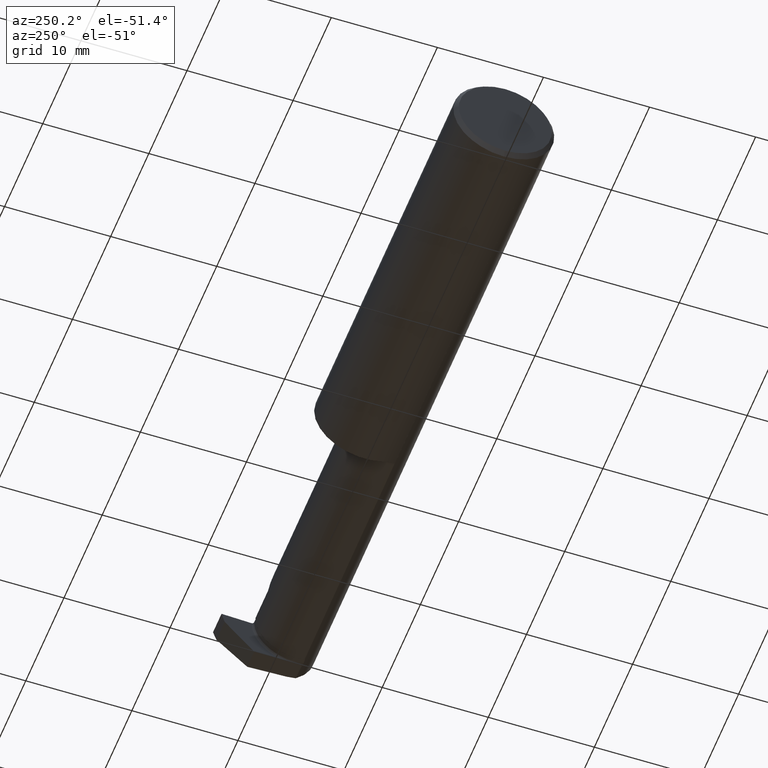
[diagram: clean part render]
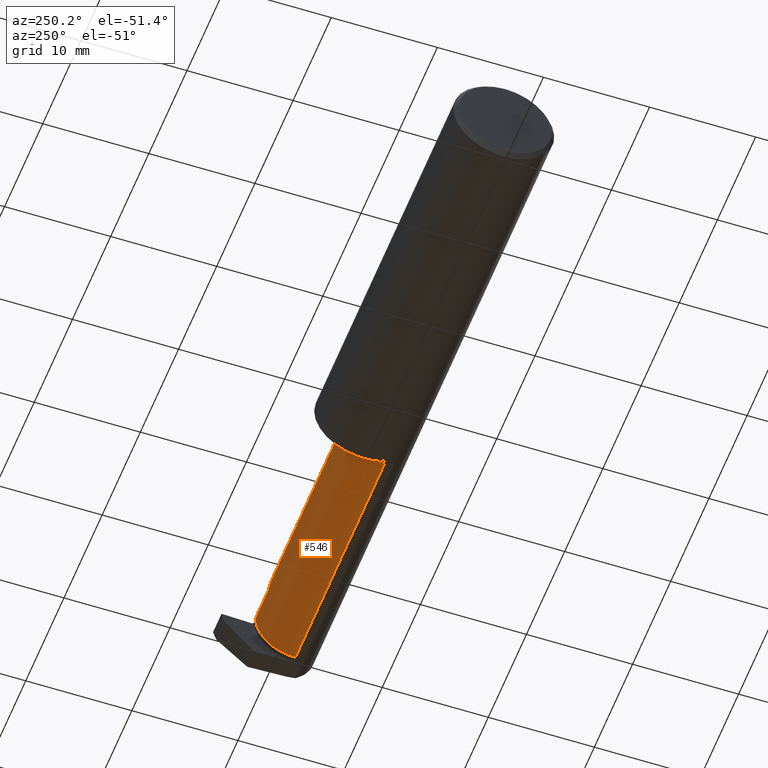
[diagram: same view with one face highlighted and labeled with its STEP entity id]
A machine part, auxiliary view. The second image highlights one B-rep face of the part: STEP entity #546.
In plain terms, the highlighted cylindrical surface (partial cylindrical patch) has radius 3.81 mm, axis along (-1, -0, -0).
Its self-contained STEP definition (entity closure, byte-faithful):
#30 = CARTESIAN_POINT ( 'NONE',  ( 2.395225471794955929, -0.01680765279787221206, -0.1347940398077654423 ) ) ;
#34 = CARTESIAN_POINT ( 'NONE',  ( 2.390763790498810160, 0.06664999999568653466, -0.01979744948649976577 ) ) ;
#95 = VERTEX_POINT ( 'NONE', #563 ) ;
#106 = ORIENTED_EDGE ( 'NONE', *, *, #234, .T. ) ;
#107 = CARTESIAN_POINT ( 'NONE',  ( 2.260000000000000231, 0.06664999999999998703, 2.939152317953647352E-17 ) ) ;
#110 = B_SPLINE_CURVE_WITH_KNOTS ( 'NONE', 3,
 ( #437, #34, #288, #533, #836, #990, #362, #431, #119, #598, #30, #446, #126, #275 ),
 .UNSPECIFIED., .F., .F.,
 ( 4, 2, 2, 2, 2, 2, 4 ),
 ( 0.000000000000000000, 0.001502816197902084178, 0.002254224296853126266, 0.003005632395804168789, 0.003757040494755211311, 0.004508448593706253400, 0.006011264791608339313 ),
 .UNSPECIFIED. ) ;
#119 = CARTESIAN_POINT ( 'NONE',  ( 2.394653255738095954, 0.008070310459961382160, -0.1193227123486250985 ) ) ;
#126 = CARTESIAN_POINT ( 'NONE',  ( 2.395856814876256013, -0.06360476889634815445, -0.1500000000000002720 ) ) ;
#135 = EDGE_CURVE ( 'NONE', #888, #95, #555, .T. ) ;
#136 = VERTEX_POINT ( 'NONE', #704 ) ;
#149 = CARTESIAN_POINT ( 'NONE',  ( 1.450000000000000178, -0.08334999999999995191, -0.1499999999999999667 ) ) ;
#153 = CARTESIAN_POINT ( 'NONE',  ( 1.474999999999999867, -0.08334999999999996578, 0.1499999999999999667 ) ) ;
#190 = DIRECTION ( 'NONE',  ( -1.000000000000000000, -0.000000000000000000, -0.000000000000000000 ) ) ;
#228 = AXIS2_PLACEMENT_3D ( 'NONE', #243, #190, #369 ) ;
#234 = EDGE_CURVE ( 'NONE', #136, #697, #799, .T. ) ;
#242 = CARTESIAN_POINT ( 'NONE',  ( 2.395836297478969534, -0.08335000000000182541, -0.1499999999999999944 ) ) ;
#243 = CARTESIAN_POINT ( 'NONE',  ( 1.474999999999999867, -0.08334999999999996578, 0.000000000000000000 ) ) ;
#275 = CARTESIAN_POINT ( 'NONE',  ( 2.395836297478969534, -0.08335000000000182541, -0.1499999999999999944 ) ) ;
#288 = CARTESIAN_POINT ( 'NONE',  ( 2.391494832230491863, 0.06268195086073437283, -0.03944630615901861814 ) ) ;
#306 = DIRECTION ( 'NONE',  ( -1.000000000000000000, -0.000000000000000000, -0.000000000000000000 ) ) ;
#327 = DIRECTION ( 'NONE',  ( 0.000000000000000000, 0.000000000000000000, 1.000000000000000000 ) ) ;
#341 = CARTESIAN_POINT ( 'NONE',  ( 1.450000000000000178, 0.06665000000000001479, 1.285879139104721472E-16 ) ) ;
#358 = CARTESIAN_POINT ( 'NONE',  ( 2.390000000000253699, 0.06664999999974562106, 1.168855585177079669E-17 ) ) ;
#362 = CARTESIAN_POINT ( 'NONE',  ( 2.393801628541803339, 0.02964346064176548445, -0.09913881906227751950 ) ) ;
#365 = DIRECTION ( 'NONE',  ( -1.000000000000000000, -0.000000000000000000, -0.000000000000000000 ) ) ;
#369 = DIRECTION ( 'NONE',  ( 0.000000000000000000, 0.000000000000000000, 1.000000000000000000 ) ) ;
#390 = VECTOR ( 'NONE', #365, 39.37007874015748143 ) ;
#431 = CARTESIAN_POINT ( 'NONE',  ( 2.394366831996006084, 0.01578481760160732258, -0.1129969713397719483 ) ) ;
#437 = CARTESIAN_POINT ( 'NONE',  ( 2.390000000000253699, 0.06664999999974562106, 1.168855585177079669E-17 ) ) ;
#446 = CARTESIAN_POINT ( 'NONE',  ( 2.395634578925883051, -0.04414754588174509692, -0.1461247280461798193 ) ) ;
#452 = ORIENTED_EDGE ( 'NONE', *, *, #1008, .F. ) ;
#533 = CARTESIAN_POINT ( 'NONE',  ( 2.392599397649165294, 0.05145660123729903224, -0.06650199770152477596 ) ) ;
#541 = ORIENTED_EDGE ( 'NONE', *, *, #135, .T. ) ;
#546 = ADVANCED_FACE ( 'NONE', ( #729 ), #562, .T. ) ;
#555 = LINE ( 'NONE', #149, #774 ) ;
#562 = CYLINDRICAL_SURFACE ( 'NONE', #725, 0.1499999999999999667 ) ;
#563 = CARTESIAN_POINT ( 'NONE',  ( 1.474999999999999867, -0.08334999999999995191, -0.1499999999999999667 ) ) ;
#581 = VERTEX_POINT ( 'NONE', #1039 ) ;
#584 = DIRECTION ( 'NONE',  ( -1.000000000000000000, -0.000000000000000000, -0.000000000000000000 ) ) ;
#593 = CARTESIAN_POINT ( 'NONE',  ( 2.172132034355964691, 0.06665000000000000091, 0.08786796564403574761 ) ) ;
#598 = CARTESIAN_POINT ( 'NONE',  ( 2.395076593510822693, -0.008191685434110907577, -0.1301799162637744256 ) ) ;
#602 = EDGE_CURVE ( 'NONE', #895, #95, #997, .T. ) ;
#619 = EDGE_LOOP ( 'NONE', ( #759, #541, #732, #452, #873, #106 ) ) ;
#660 = EDGE_CURVE ( 'NONE', #581, #136, #970, .T. ) ;
#671 = CARTESIAN_POINT ( 'NONE',  ( 2.110000000000001208, 0.004517965644035767080, 0.1499999999999999667 ) ) ;
#680 = EDGE_CURVE ( 'NONE', #697, #888, #110, .T. ) ;
#697 = VERTEX_POINT ( 'NONE', #358 ) ;
#704 = CARTESIAN_POINT ( 'NONE',  ( 2.260000000000000231, 0.06664999999999998703, 2.939152317953647352E-17 ) ) ;
#725 = AXIS2_PLACEMENT_3D ( 'NONE', #972, #584, #327 ) ;
#729 = FACE_OUTER_BOUND ( 'NONE', #619, .T. ) ;
#732 = ORIENTED_EDGE ( 'NONE', *, *, #602, .F. ) ;
#759 = ORIENTED_EDGE ( 'NONE', *, *, #680, .T. ) ;
#774 = VECTOR ( 'NONE', #306, 39.37007874015748143 ) ;
#793 = DIRECTION ( 'NONE',  ( 1.000000000000000000, 0.000000000000000000, 0.000000000000000000 ) ) ;
#799 = LINE ( 'NONE', #341, #857 ) ;
#820 = LINE ( 'NONE', #896, #390 ) ;
#836 = CARTESIAN_POINT ( 'NONE',  ( 2.392934709761937562, 0.04676339944382951891, -0.07527877754758263706 ) ) ;
#857 = VECTOR ( 'NONE', #793, 39.37007874015748143 ) ;
#873 = ORIENTED_EDGE ( 'NONE', *, *, #660, .T. ) ;
#888 = VERTEX_POINT ( 'NONE', #242 ) ;
#895 = VERTEX_POINT ( 'NONE', #153 ) ;
#896 = CARTESIAN_POINT ( 'NONE',  ( 1.450000000000000178, -0.08334999999999996578, 0.1499999999999999667 ) ) ;
#970 =( BOUNDED_CURVE ( )  B_SPLINE_CURVE ( 3, ( #1002, #671, #593, #107 ),
 .UNSPECIFIED., .F., .F. ) 
 B_SPLINE_CURVE_WITH_KNOTS ( ( 4, 4 ),
 ( 0.000000000000000000, 1.570796326794896558 ),
 .UNSPECIFIED. ) 
 CURVE ( )  GEOMETRIC_REPRESENTATION_ITEM ( )  RATIONAL_B_SPLINE_CURVE ( ( 1.000000000000000000, 0.8047378541243649375, 0.8047378541243649375, 1.000000000000000000 ) ) 
 REPRESENTATION_ITEM ( '' )  );
#972 = CARTESIAN_POINT ( 'NONE',  ( 1.450000000000000178, -0.08334999999999996578, 0.000000000000000000 ) ) ;
#990 = CARTESIAN_POINT ( 'NONE',  ( 2.393522623116000947, 0.03584097916388313820, -0.09159640576923723521 ) ) ;
#997 = CIRCLE ( 'NONE', #228, 0.1499999999999999667 ) ;
#1002 = CARTESIAN_POINT ( 'NONE',  ( 2.110000000000001208, -0.08334999999999996578, 0.1499999999999999667 ) ) ;
#1008 = EDGE_CURVE ( 'NONE', #581, #895, #820, .T. ) ;
#1039 = CARTESIAN_POINT ( 'NONE',  ( 2.110000000000001208, -0.08334999999999996578, 0.1499999999999999667 ) ) ;